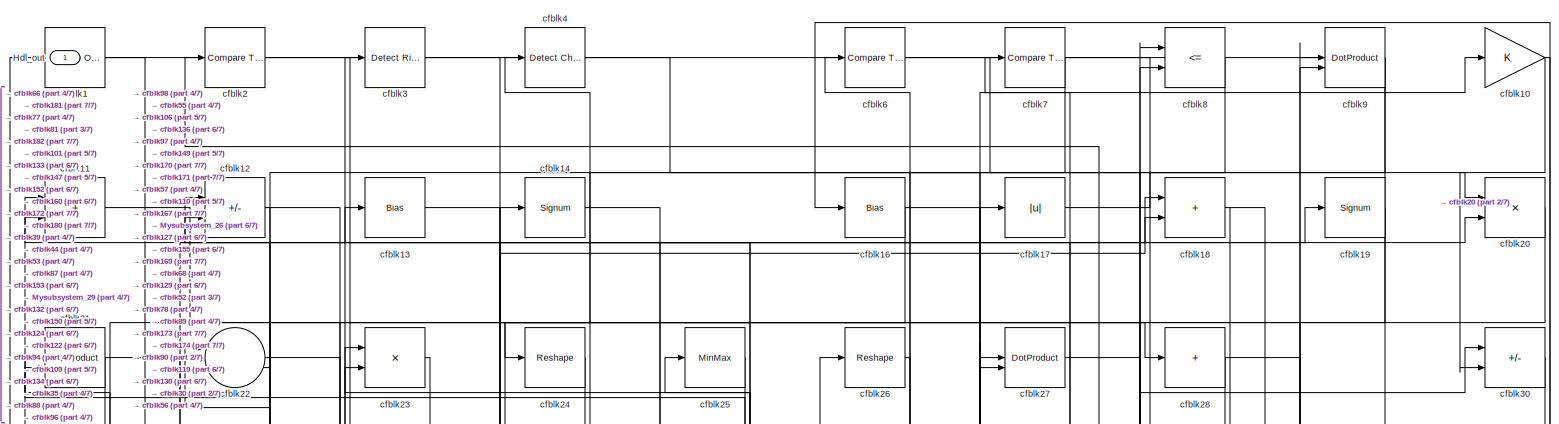
[diagram: root canvas - part 1/7, full width, top band]
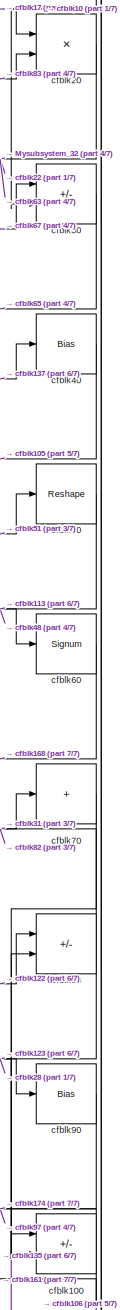
[diagram: root canvas - part 2/7, top right region]
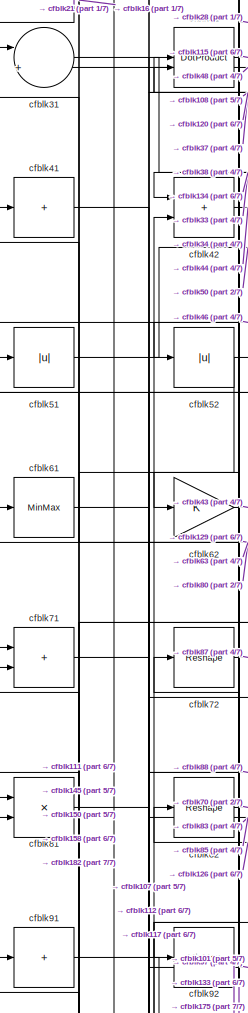
[diagram: root canvas - part 3/7, middle left region]
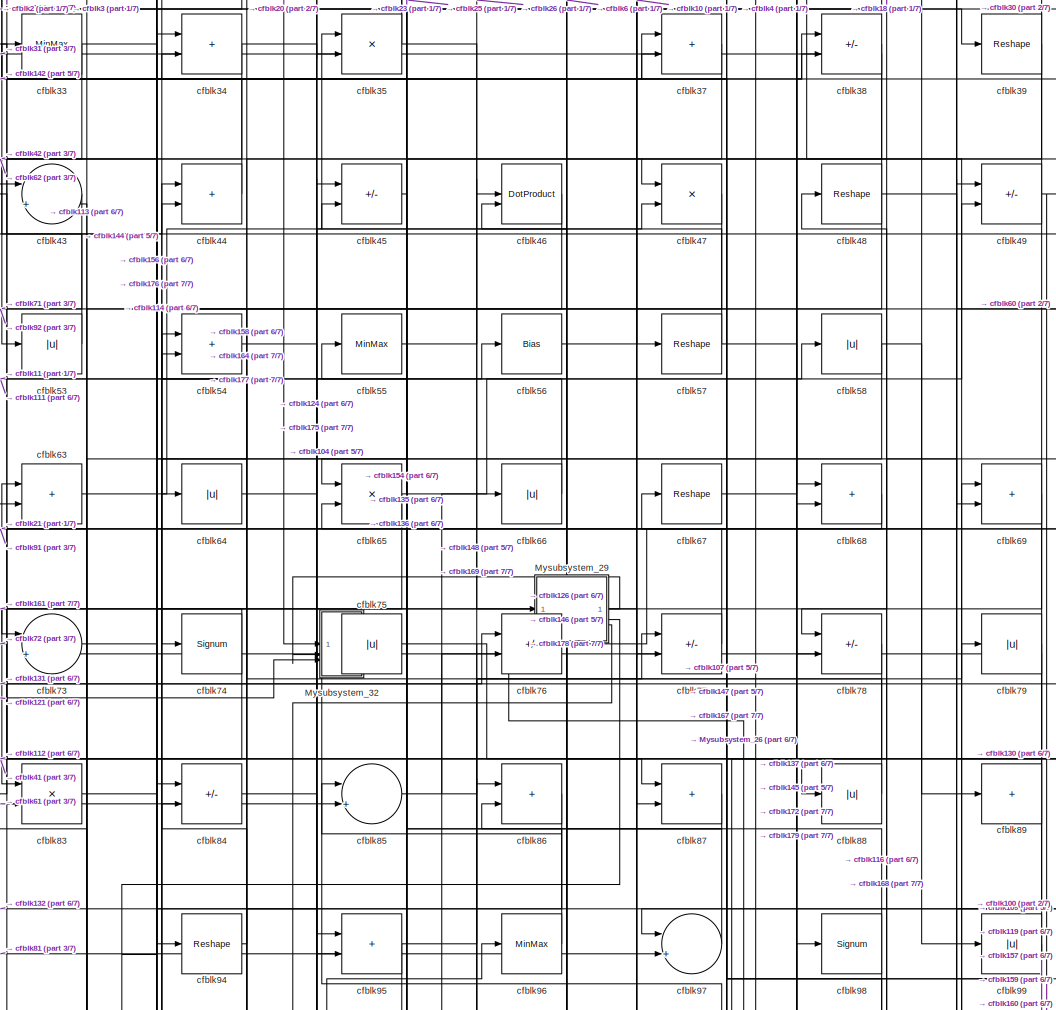
[diagram: root canvas - part 4/7, central region]
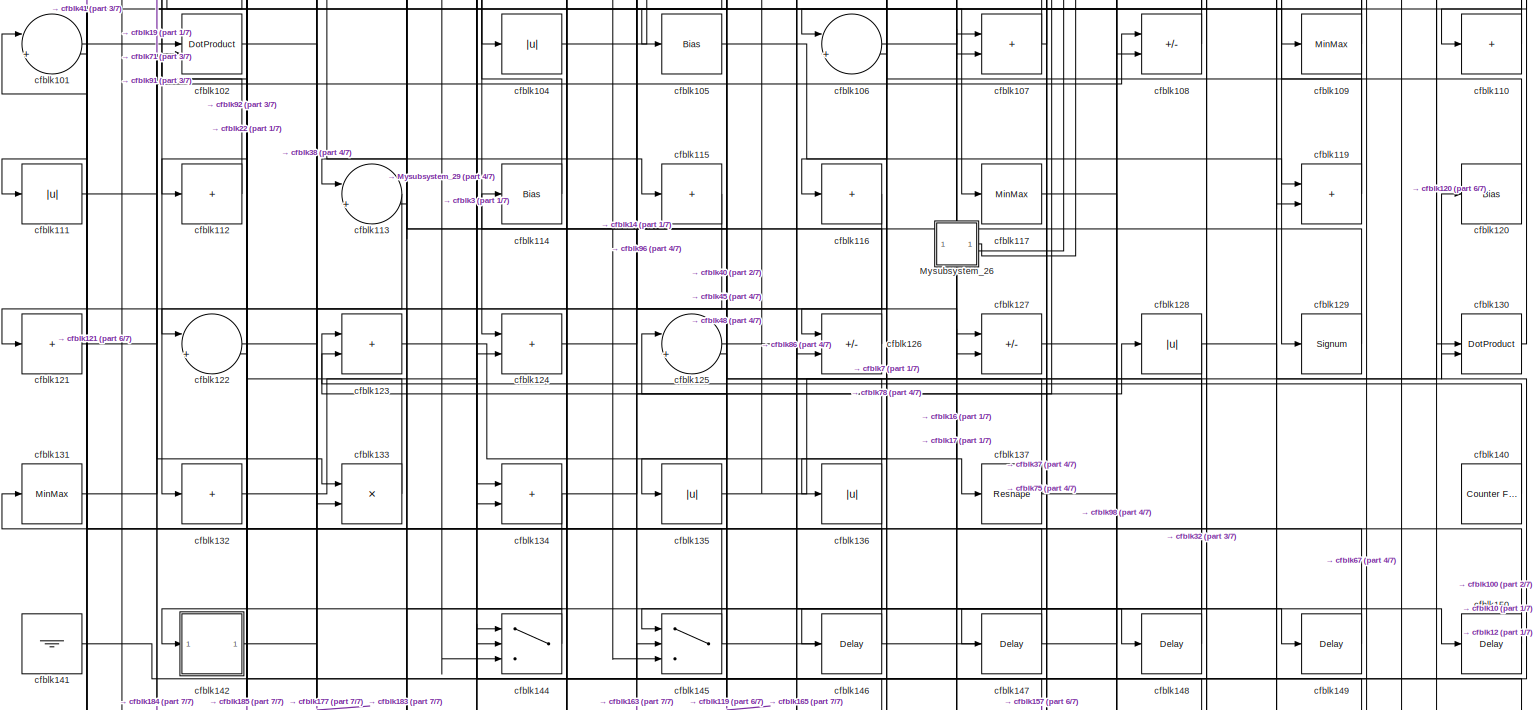
[diagram: root canvas - part 5/7, full width, middle band]
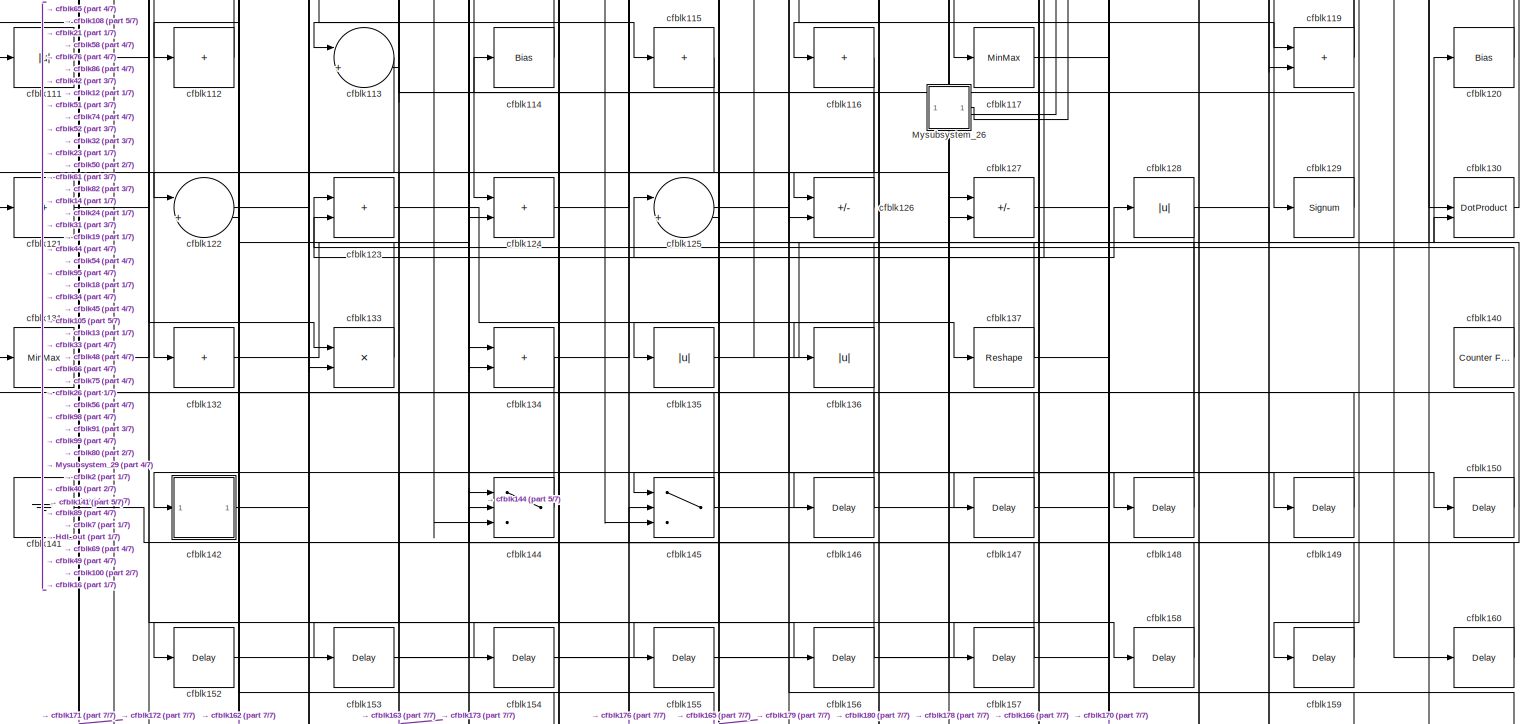
[diagram: root canvas - part 6/7, full width, bottom band]
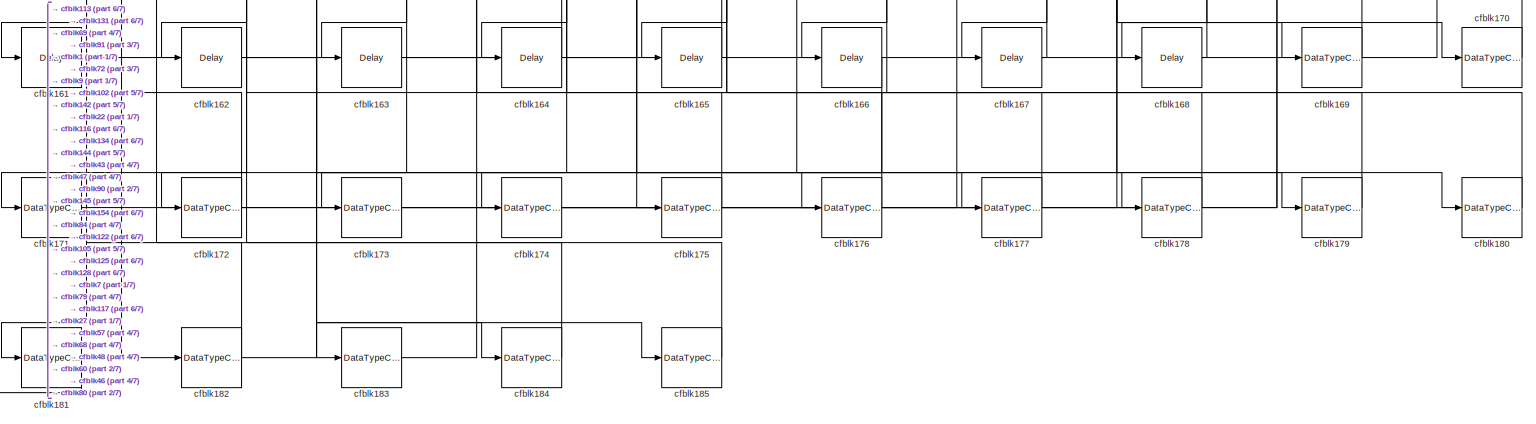
[diagram: root canvas - part 7/7, full width, bottom band]
MODEL slx_565dc2984d98
KIND model
CONFIG AbsTol = auto
CONFIG EnableMultiTasking = off
CONFIG FixedStep = auto
CONFIG MaxStep = auto
CONFIG MinStep = auto
CONFIG RelTol = 1e-3
CONFIG SampleTimeConstraint = Unconstrained
CONFIG SolverName = VariableStepAuto
CONFIG StartTime = 0.0
CONFIG StopTime = 10.0
BLOCK [Outport] Hdl_out
  OutDataTypeStr = uint8
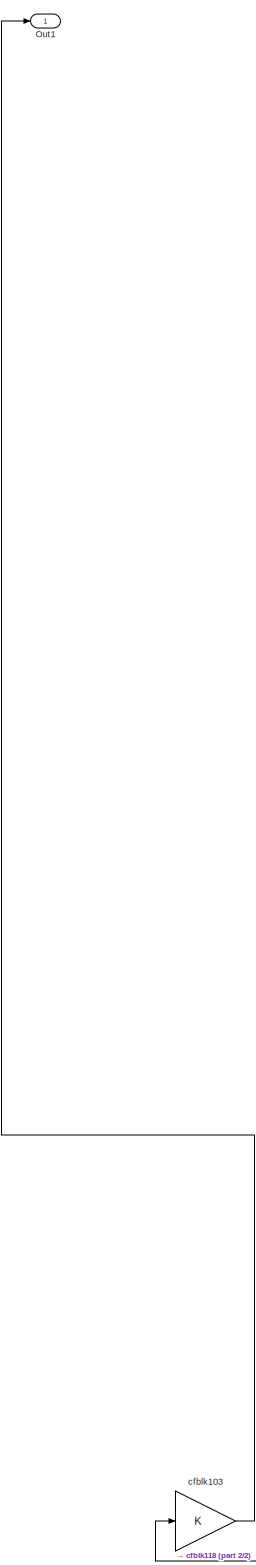
[diagram: Mysubsystem_26 - part 1/2, left side, full height]
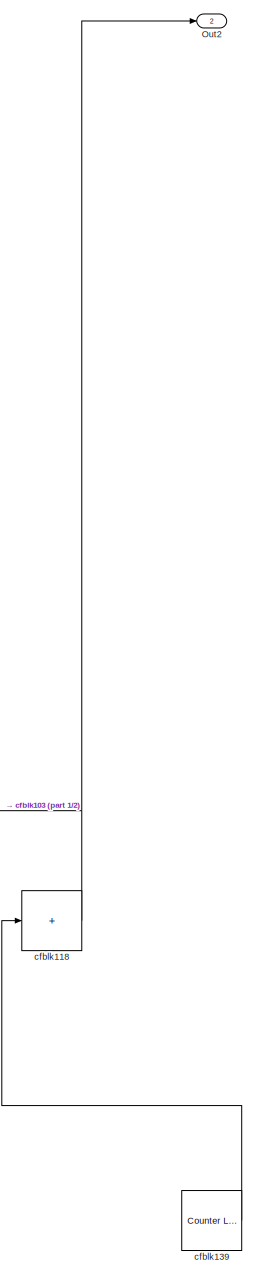
[diagram: Mysubsystem_26 - part 2/2, bottom right region]
BLOCK [SubSystem] Mysubsystem_26
  RTWFcnName = Mysubsystem_26
  RTWFcnNameOpts = User specified
  RTWFileNameOpts = Use function name
  RTWSystemCode = Reusable function
  TreatAsAtomicUnit = on
BLOCK [Outport] Mysubsystem_26/Out1
BLOCK [Outport] Mysubsystem_26/Out2
  Port = 2
BLOCK [Gain] Mysubsystem_26/cfblk103
BLOCK [Sum] Mysubsystem_26/cfblk118
  IconShape = rectangular
  Inputs = +
BLOCK [Reference] Mysubsystem_26/cfblk139  REF=hdlsllib/Sources/Counter
Limited
  SourceBlock = hdlsllib/Sources/Counter\nLimited
  SourceType = Counter Limited
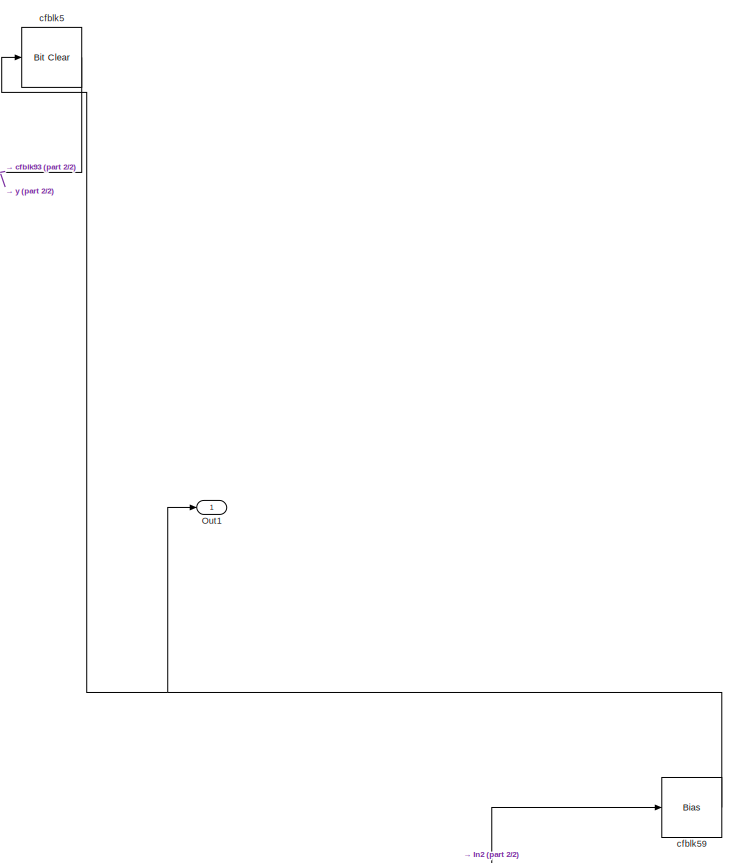
[diagram: Mysubsystem_29 - part 1/2, top center region]
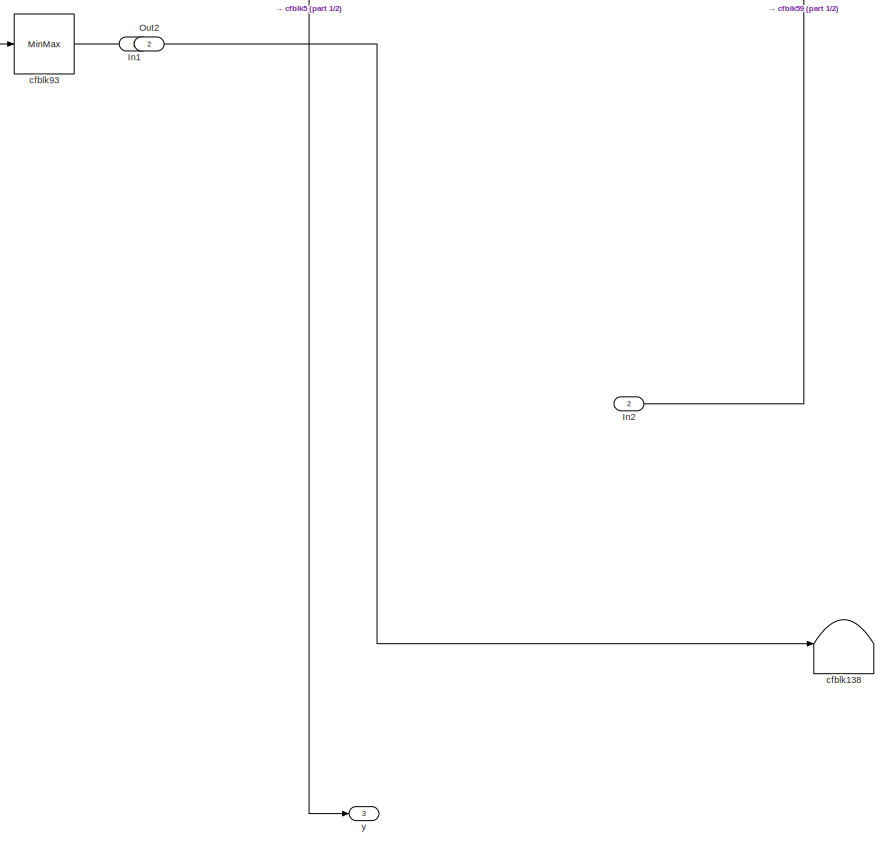
[diagram: Mysubsystem_29 - part 2/2, full width, bottom band]
BLOCK [SubSystem] Mysubsystem_29
  RTWFcnName = Mysubsystem_29
  RTWFcnNameOpts = User specified
  RTWFileNameOpts = Use function name
  RTWSystemCode = Reusable function
  TreatAsAtomicUnit = on
BLOCK [Inport] Mysubsystem_29/In1
BLOCK [Inport] Mysubsystem_29/In2
  Port = 2
BLOCK [Outport] Mysubsystem_29/Out1
BLOCK [Outport] Mysubsystem_29/Out2
  Port = 2
BLOCK [Terminator] Mysubsystem_29/cfblk138
BLOCK [Reference] Mysubsystem_29/cfblk5  REF=simulink/Logic and Bit
Operations/Bit Clear
  LibrarySourceBlock = hdlsllib/Logic and Bit\nOperations/Bit Clear
  SourceBlock = simulink/Logic and Bit\nOperations/Bit Clear
  SourceType = Bit Clear
BLOCK [Bias] Mysubsystem_29/cfblk59
  Bias = 0.0
  SaturateOnIntegerOverflow = off
BLOCK [MinMax] Mysubsystem_29/cfblk93
BLOCK [Outport] Mysubsystem_29/y
  Port = 3
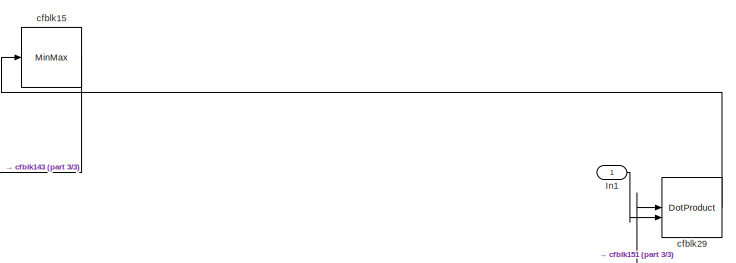
[diagram: Mysubsystem_32 - part 1/3, top right region]
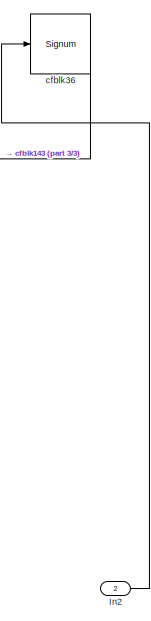
[diagram: Mysubsystem_32 - part 2/3, top center region]
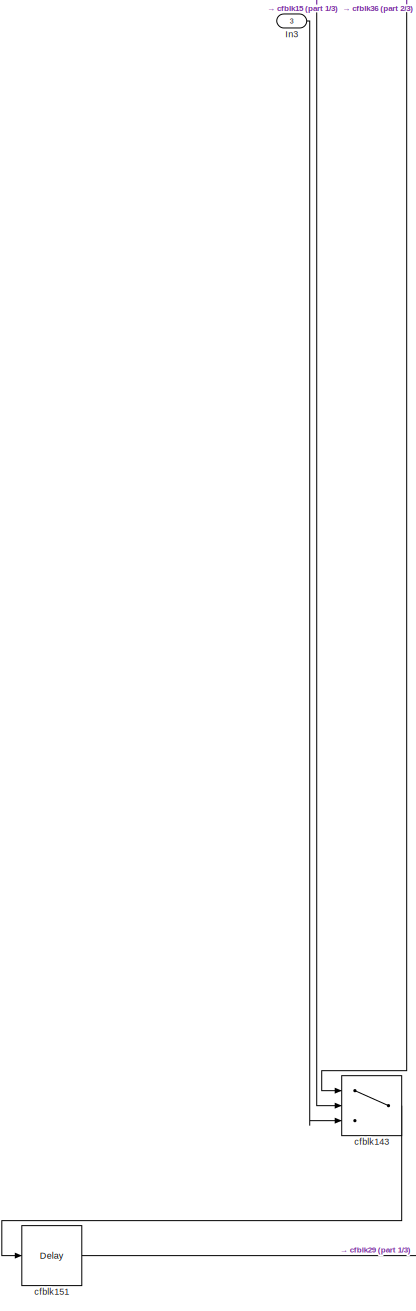
[diagram: Mysubsystem_32 - part 3/3, bottom left region]
BLOCK [SubSystem] Mysubsystem_32
  RTWFcnName = Mysubsystem_32
  RTWFcnNameOpts = User specified
  RTWFileNameOpts = Use function name
  RTWSystemCode = Reusable function
  TreatAsAtomicUnit = on
BLOCK [Inport] Mysubsystem_32/In1
BLOCK [Inport] Mysubsystem_32/In2
  Port = 2
BLOCK [Inport] Mysubsystem_32/In3
  Port = 3
BLOCK [Switch] Mysubsystem_32/cfblk143
  InputSameDT = off
  SaturateOnIntegerOverflow = off
BLOCK [MinMax] Mysubsystem_32/cfblk15
BLOCK [Delay] Mysubsystem_32/cfblk151
  InputPortMap = u0
  SampleTime = 1
BLOCK [DotProduct] Mysubsystem_32/cfblk29
  OutDataTypeStr = Inherit: Inherit via internal rule
BLOCK [Signum] Mysubsystem_32/cfblk36
BLOCK [Reference] cfblk1  REF=simulink/Logic and Bit
Operations/Bitwise
Operator
  LibrarySourceBlock = hdlsllib/Logic and Bit\nOperations/Bitwise\nOperator
  SourceBlock = simulink/Logic and Bit\nOperations/Bitwise\nOperator
  SourceType = Bitwise Operator
BLOCK [Gain] cfblk10
  OutDataTypeStr = uint8
BLOCK [Sum] cfblk100
  IconShape = rectangular
  Inputs = +-
  OutDataTypeStr = uint8
BLOCK [Sum] cfblk101
  Inputs = |++
  OutDataTypeStr = uint8
BLOCK [DotProduct] cfblk102
  OutDataTypeStr = uint8
BLOCK [Abs] cfblk104
  OutDataTypeStr = uint8
  SaturateOnIntegerOverflow = off
BLOCK [Bias] cfblk105
  Bias = 0.0
  SaturateOnIntegerOverflow = off
BLOCK [Sum] cfblk106
  Inputs = |++
  OutDataTypeStr = uint8
BLOCK [Sum] cfblk107
  IconShape = rectangular
  OutDataTypeStr = uint8
BLOCK [Sum] cfblk108
  IconShape = rectangular
  Inputs = +-
  OutDataTypeStr = uint8
BLOCK [MinMax] cfblk109
  OutDataTypeStr = uint8
BLOCK [Sum] cfblk11
  IconShape = rectangular
  OutDataTypeStr = uint8
BLOCK [Sum] cfblk110
  IconShape = rectangular
  Inputs = +
  OutDataTypeStr = uint8
BLOCK [Abs] cfblk111
  OutDataTypeStr = uint8
  SaturateOnIntegerOverflow = off
BLOCK [Sum] cfblk112
  IconShape = rectangular
  Inputs = +
  OutDataTypeStr = uint8
BLOCK [Sum] cfblk113
  Inputs = |++
  OutDataTypeStr = uint8
BLOCK [Bias] cfblk114
  Bias = 0.0
  SaturateOnIntegerOverflow = off
BLOCK [Sum] cfblk115
  IconShape = rectangular
  Inputs = +
  OutDataTypeStr = uint8
BLOCK [Sum] cfblk116
  IconShape = rectangular
  Inputs = +
  OutDataTypeStr = uint8
BLOCK [MinMax] cfblk117
  OutDataTypeStr = uint8
BLOCK [Sum] cfblk119
  IconShape = rectangular
  OutDataTypeStr = uint8
BLOCK [Sum] cfblk12
  IconShape = rectangular
  Inputs = +-
  OutDataTypeStr = uint8
BLOCK [Bias] cfblk120
  Bias = 0.0
  SaturateOnIntegerOverflow = off
BLOCK [Sum] cfblk121
  IconShape = rectangular
  Inputs = +
  OutDataTypeStr = uint8
BLOCK [Sum] cfblk122
  Inputs = |++
  OutDataTypeStr = uint8
BLOCK [Sum] cfblk123
  IconShape = rectangular
  OutDataTypeStr = uint8
BLOCK [Sum] cfblk124
  IconShape = rectangular
  OutDataTypeStr = uint8
BLOCK [Sum] cfblk125
  Inputs = |++
  OutDataTypeStr = uint8
BLOCK [Sum] cfblk126
  IconShape = rectangular
  Inputs = +-
  OutDataTypeStr = uint8
BLOCK [Sum] cfblk127
  IconShape = rectangular
  Inputs = +-
  OutDataTypeStr = uint8
BLOCK [Abs] cfblk128
  OutDataTypeStr = uint8
  SaturateOnIntegerOverflow = off
BLOCK [Signum] cfblk129
BLOCK [Bias] cfblk13
  Bias = 0.0
  SaturateOnIntegerOverflow = off
BLOCK [DotProduct] cfblk130
  OutDataTypeStr = uint8
BLOCK [MinMax] cfblk131
  OutDataTypeStr = uint8
BLOCK [Sum] cfblk132
  IconShape = rectangular
  Inputs = +
  OutDataTypeStr = uint8
BLOCK [Product] cfblk133
  Inputs = */
  OutDataTypeStr = uint8
  RndMeth = Zero
  SaturateOnIntegerOverflow = on
BLOCK [Sum] cfblk134
  IconShape = rectangular
  OutDataTypeStr = uint8
BLOCK [Abs] cfblk135
  OutDataTypeStr = uint8
  SaturateOnIntegerOverflow = off
BLOCK [Abs] cfblk136
  OutDataTypeStr = uint8
  SaturateOnIntegerOverflow = off
BLOCK [Reshape] cfblk137
BLOCK [Signum] cfblk14
BLOCK [Reference] cfblk140  REF=hdlsllib/Sources/Counter
Free-Running
  SourceBlock = hdlsllib/Sources/Counter\nFree-Running
  SourceType = Counter Free-Running
BLOCK [Ground] cfblk141
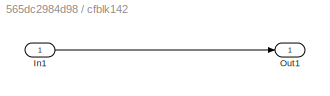
BLOCK [SubSystem] cfblk142
  LibrarySourceBlock = hdlsllib/Ports &\nSubsystems/Subsystem
BLOCK [Inport] cfblk142/In1
BLOCK [Outport] cfblk142/Out1
BLOCK [Switch] cfblk144
  InputSameDT = off
  OutDataTypeStr = uint8
  SaturateOnIntegerOverflow = off
BLOCK [Switch] cfblk145
  InputSameDT = off
  OutDataTypeStr = uint8
  SaturateOnIntegerOverflow = off
BLOCK [Delay] cfblk146
  InputPortMap = u0
  SampleTime = 1
BLOCK [Delay] cfblk147
  InputPortMap = u0
  SampleTime = 1
BLOCK [Delay] cfblk148
  InputPortMap = u0
  SampleTime = 1
BLOCK [Delay] cfblk149
  InputPortMap = u0
  SampleTime = 1
BLOCK [Delay] cfblk150
  InputPortMap = u0
  SampleTime = 1
BLOCK [Delay] cfblk152
  InputPortMap = u0
  SampleTime = 1
BLOCK [Delay] cfblk153
  InputPortMap = u0
  SampleTime = 1
BLOCK [Delay] cfblk154
  InputPortMap = u0
  SampleTime = 1
BLOCK [Delay] cfblk155
  InputPortMap = u0
  SampleTime = 1
BLOCK [Delay] cfblk156
  InputPortMap = u0
  SampleTime = 1
BLOCK [Delay] cfblk157
  InputPortMap = u0
  SampleTime = 1
BLOCK [Delay] cfblk158
  InputPortMap = u0
  SampleTime = 1
BLOCK [Delay] cfblk159
  InputPortMap = u0
  SampleTime = 1
BLOCK [Bias] cfblk16
  Bias = 0.0
  SaturateOnIntegerOverflow = off
BLOCK [Delay] cfblk160
  InputPortMap = u0
  SampleTime = 1
BLOCK [Delay] cfblk161
  InputPortMap = u0
  SampleTime = 1
BLOCK [Delay] cfblk162
  InputPortMap = u0
  SampleTime = 1
BLOCK [Delay] cfblk163
  InputPortMap = u0
  SampleTime = 1
BLOCK [Delay] cfblk164
  InputPortMap = u0
  SampleTime = 1
BLOCK [Delay] cfblk165
  InputPortMap = u0
  SampleTime = 1
BLOCK [Delay] cfblk166
  InputPortMap = u0
  SampleTime = 1
BLOCK [Delay] cfblk167
  InputPortMap = u0
  SampleTime = 1
BLOCK [Delay] cfblk168
  InputPortMap = u0
  SampleTime = 1
BLOCK [DataTypeConversion] cfblk169
  OutDataTypeStr = uint8
  RndMeth = Floor
  SaturateOnIntegerOverflow = off
BLOCK [Abs] cfblk17
  OutDataTypeStr = uint8
  SaturateOnIntegerOverflow = off
BLOCK [DataTypeConversion] cfblk170
  OutDataTypeStr = uint8
  RndMeth = Floor
  SaturateOnIntegerOverflow = off
BLOCK [DataTypeConversion] cfblk171
  OutDataTypeStr = uint8
  RndMeth = Floor
  SaturateOnIntegerOverflow = off
BLOCK [DataTypeConversion] cfblk172
  OutDataTypeStr = uint8
  RndMeth = Floor
  SaturateOnIntegerOverflow = off
BLOCK [DataTypeConversion] cfblk173
  OutDataTypeStr = uint8
  RndMeth = Floor
  SaturateOnIntegerOverflow = off
BLOCK [DataTypeConversion] cfblk174
  OutDataTypeStr = uint8
  RndMeth = Floor
  SaturateOnIntegerOverflow = off
BLOCK [DataTypeConversion] cfblk175
  OutDataTypeStr = uint8
  RndMeth = Floor
  SaturateOnIntegerOverflow = off
BLOCK [DataTypeConversion] cfblk176
  OutDataTypeStr = uint8
  RndMeth = Floor
  SaturateOnIntegerOverflow = off
BLOCK [DataTypeConversion] cfblk177
  OutDataTypeStr = uint8
  RndMeth = Floor
  SaturateOnIntegerOverflow = off
BLOCK [DataTypeConversion] cfblk178
  OutDataTypeStr = uint8
  RndMeth = Floor
  SaturateOnIntegerOverflow = off
BLOCK [DataTypeConversion] cfblk179
  OutDataTypeStr = uint8
  RndMeth = Floor
  SaturateOnIntegerOverflow = off
BLOCK [Sum] cfblk18
  IconShape = rectangular
  OutDataTypeStr = uint8
BLOCK [DataTypeConversion] cfblk180
  OutDataTypeStr = uint8
  RndMeth = Floor
  SaturateOnIntegerOverflow = off
BLOCK [DataTypeConversion] cfblk181
  OutDataTypeStr = uint8
  RndMeth = Floor
  SaturateOnIntegerOverflow = off
BLOCK [DataTypeConversion] cfblk182
  OutDataTypeStr = uint8
  RndMeth = Floor
  SaturateOnIntegerOverflow = off
BLOCK [DataTypeConversion] cfblk183
  OutDataTypeStr = uint8
  RndMeth = Floor
  SaturateOnIntegerOverflow = off
BLOCK [DataTypeConversion] cfblk184
  OutDataTypeStr = uint8
  RndMeth = Floor
  SaturateOnIntegerOverflow = off
BLOCK [DataTypeConversion] cfblk185
  OutDataTypeStr = uint8
  RndMeth = Floor
  SaturateOnIntegerOverflow = off
BLOCK [Signum] cfblk19
BLOCK [Reference] cfblk2  REF=hdlsllib/Logic and Bit
Operations/Compare
To Constant
  SourceBlock = hdlsllib/Logic and Bit\nOperations/Compare\nTo Constant
  SourceType = Compare To Constant
BLOCK [Product] cfblk20
  Inputs = */
  OutDataTypeStr = uint8
  RndMeth = Zero
  SaturateOnIntegerOverflow = on
BLOCK [DotProduct] cfblk21
  OutDataTypeStr = uint8
BLOCK [Sum] cfblk22
  Inputs = |++
  OutDataTypeStr = uint8
BLOCK [Product] cfblk23
  Inputs = */
  OutDataTypeStr = uint8
  RndMeth = Zero
  SaturateOnIntegerOverflow = on
BLOCK [Reshape] cfblk24
BLOCK [MinMax] cfblk25
  OutDataTypeStr = uint8
BLOCK [Reshape] cfblk26
BLOCK [DotProduct] cfblk27
  OutDataTypeStr = uint8
BLOCK [Sum] cfblk28
  IconShape = rectangular
  Inputs = +
  OutDataTypeStr = uint8
BLOCK [Reference] cfblk3  REF=hdlsllib/Logic and Bit
Operations/Detect Rise
Nonnegative
  SourceBlock = hdlsllib/Logic and Bit\nOperations/Detect Rise\nNonnegative
  SourceType = Detect Rise Nonnegative
BLOCK [Sum] cfblk30
  IconShape = rectangular
  Inputs = +-
  OutDataTypeStr = uint8
BLOCK [Sum] cfblk31
  Inputs = |++
  OutDataTypeStr = uint8
BLOCK [DotProduct] cfblk32
  OutDataTypeStr = uint8
BLOCK [MinMax] cfblk33
  OutDataTypeStr = uint8
BLOCK [Sum] cfblk34
  IconShape = rectangular
  OutDataTypeStr = uint8
BLOCK [Product] cfblk35
  Inputs = */
  OutDataTypeStr = uint8
  RndMeth = Zero
  SaturateOnIntegerOverflow = on
BLOCK [Sum] cfblk37
  IconShape = rectangular
  OutDataTypeStr = uint8
BLOCK [Sum] cfblk38
  IconShape = rectangular
  Inputs = +-
  OutDataTypeStr = uint8
BLOCK [Reshape] cfblk39
BLOCK [Reference] cfblk4  REF=simulink/Logic and Bit
Operations/Detect
Change
  LibrarySourceBlock = hdlsllib/Logic and Bit\nOperations/Detect\nChange
  SourceBlock = simulink/Logic and Bit\nOperations/Detect\nChange
  SourceType = Detect Change
BLOCK [Bias] cfblk40
  Bias = 0.0
  SaturateOnIntegerOverflow = off
BLOCK [Sum] cfblk41
  IconShape = rectangular
  Inputs = +
  OutDataTypeStr = uint8
BLOCK [Sum] cfblk42
  IconShape = rectangular
  OutDataTypeStr = uint8
BLOCK [Sum] cfblk43
  Inputs = |++
  OutDataTypeStr = uint8
BLOCK [Sum] cfblk44
  IconShape = rectangular
  OutDataTypeStr = uint8
BLOCK [Sum] cfblk45
  IconShape = rectangular
  Inputs = +-
  OutDataTypeStr = uint8
BLOCK [DotProduct] cfblk46
  OutDataTypeStr = uint8
BLOCK [Product] cfblk47
  Inputs = */
  OutDataTypeStr = uint8
  RndMeth = Zero
  SaturateOnIntegerOverflow = on
BLOCK [Reshape] cfblk48
BLOCK [Sum] cfblk49
  IconShape = rectangular
  Inputs = +-
  OutDataTypeStr = uint8
BLOCK [Reshape] cfblk50
BLOCK [Abs] cfblk51
  OutDataTypeStr = uint8
  SaturateOnIntegerOverflow = off
BLOCK [Abs] cfblk52
  OutDataTypeStr = uint8
  SaturateOnIntegerOverflow = off
BLOCK [Abs] cfblk53
  OutDataTypeStr = uint8
  SaturateOnIntegerOverflow = off
BLOCK [Sum] cfblk54
  IconShape = rectangular
  OutDataTypeStr = uint8
BLOCK [MinMax] cfblk55
  OutDataTypeStr = uint8
BLOCK [Bias] cfblk56
  Bias = 0.0
  SaturateOnIntegerOverflow = off
BLOCK [Reshape] cfblk57
BLOCK [Abs] cfblk58
  OutDataTypeStr = uint8
  SaturateOnIntegerOverflow = off
BLOCK [Reference] cfblk6  REF=hdlsllib/Logic and Bit
Operations/Compare
To Zero
  SourceBlock = hdlsllib/Logic and Bit\nOperations/Compare\nTo Zero
  SourceType = Compare To Zero
BLOCK [Signum] cfblk60
BLOCK [MinMax] cfblk61
  OutDataTypeStr = uint8
BLOCK [Gain] cfblk62
  OutDataTypeStr = uint8
BLOCK [Sum] cfblk63
  IconShape = rectangular
  OutDataTypeStr = uint8
BLOCK [Abs] cfblk64
  OutDataTypeStr = uint8
  SaturateOnIntegerOverflow = off
BLOCK [Product] cfblk65
  Inputs = */
  OutDataTypeStr = uint8
  RndMeth = Zero
  SaturateOnIntegerOverflow = on
BLOCK [Abs] cfblk66
  OutDataTypeStr = uint8
  SaturateOnIntegerOverflow = off
BLOCK [Reshape] cfblk67
BLOCK [Sum] cfblk68
  IconShape = rectangular
  OutDataTypeStr = uint8
BLOCK [Sum] cfblk69
  IconShape = rectangular
  OutDataTypeStr = uint8
BLOCK [Reference] cfblk7  REF=hdlsllib/Logic and Bit
Operations/Compare
To Constant
  SourceBlock = hdlsllib/Logic and Bit\nOperations/Compare\nTo Constant
  SourceType = Compare To Constant
BLOCK [Sum] cfblk70
  IconShape = rectangular
  Inputs = +
  OutDataTypeStr = uint8
BLOCK [Sum] cfblk71
  IconShape = rectangular
  OutDataTypeStr = uint8
BLOCK [Reshape] cfblk72
BLOCK [Sum] cfblk73
  Inputs = |++
  OutDataTypeStr = uint8
BLOCK [Signum] cfblk74
BLOCK [Abs] cfblk75
  OutDataTypeStr = uint8
  SaturateOnIntegerOverflow = off
BLOCK [Sum] cfblk76
  IconShape = rectangular
  Inputs = +-
  OutDataTypeStr = uint8
BLOCK [Sum] cfblk77
  IconShape = rectangular
  Inputs = +-
  OutDataTypeStr = uint8
BLOCK [Sum] cfblk78
  IconShape = rectangular
  Inputs = +-
  OutDataTypeStr = uint8
BLOCK [Abs] cfblk79
  OutDataTypeStr = uint8
  SaturateOnIntegerOverflow = off
BLOCK [RelationalOperator] cfblk8
  InputSameDT = off
  Operator = <=
  OutDataTypeStr = boolean
BLOCK [Sum] cfblk80
  IconShape = rectangular
  Inputs = +-
  OutDataTypeStr = uint8
BLOCK [Product] cfblk81
  Inputs = */
  OutDataTypeStr = uint8
  RndMeth = Zero
  SaturateOnIntegerOverflow = on
BLOCK [Reshape] cfblk82
BLOCK [Product] cfblk83
  Inputs = */
  OutDataTypeStr = uint8
  RndMeth = Zero
  SaturateOnIntegerOverflow = on
BLOCK [Sum] cfblk84
  IconShape = rectangular
  Inputs = +-
  OutDataTypeStr = uint8
BLOCK [Sum] cfblk85
  Inputs = |++
  OutDataTypeStr = uint8
BLOCK [Sum] cfblk86
  IconShape = rectangular
  OutDataTypeStr = uint8
BLOCK [Sum] cfblk87
  IconShape = rectangular
  OutDataTypeStr = uint8
BLOCK [Abs] cfblk88
  OutDataTypeStr = uint8
  SaturateOnIntegerOverflow = off
BLOCK [Sum] cfblk89
  IconShape = rectangular
  Inputs = +
  OutDataTypeStr = uint8
BLOCK [DotProduct] cfblk9
  OutDataTypeStr = uint8
BLOCK [Bias] cfblk90
  Bias = 0.0
  SaturateOnIntegerOverflow = off
BLOCK [Sum] cfblk91
  IconShape = rectangular
  Inputs = +
  OutDataTypeStr = uint8
BLOCK [MinMax] cfblk92
  OutDataTypeStr = uint8
BLOCK [Reshape] cfblk94
BLOCK [Sum] cfblk95
  IconShape = rectangular
  OutDataTypeStr = uint8
BLOCK [MinMax] cfblk96
  OutDataTypeStr = uint8
BLOCK [Sum] cfblk97
  Inputs = |++
  OutDataTypeStr = uint8
BLOCK [Signum] cfblk98
BLOCK [Abs] cfblk99
  OutDataTypeStr = uint8
  SaturateOnIntegerOverflow = off
LINE Mysubsystem_26/cfblk103:1 -> Mysubsystem_26/Out1:1
NET Mysubsystem_26/cfblk118:1 -> Mysubsystem_26/Out2:1, Mysubsystem_26/cfblk103:1
LINE Mysubsystem_26/cfblk139:1 -> Mysubsystem_26/cfblk118:1
LINE Mysubsystem_26:1 -> cfblk2:1
LINE Mysubsystem_26:2 -> Mysubsystem_29:2
LINE Mysubsystem_29/In1:1 -> Mysubsystem_29/cfblk138:1
LINE Mysubsystem_29/In2:1 -> Mysubsystem_29/cfblk59:1
NET Mysubsystem_29/cfblk59:1 -> Mysubsystem_29/Out1:1, Mysubsystem_29/cfblk5:1
NET Mysubsystem_29/cfblk5:1 -> Mysubsystem_29/cfblk93:1, Mysubsystem_29/y:1
LINE Mysubsystem_29/cfblk93:1 -> Mysubsystem_29/Out2:1
LINE Mysubsystem_29:1 -> Mysubsystem_32:2
NET Mysubsystem_29:2 -> Mysubsystem_29:1, cfblk144:3, cfblk18:1
LINE Mysubsystem_29:3 -> cfblk145:3
LINE Mysubsystem_32/In1:1 -> Mysubsystem_32/cfblk29:2
LINE Mysubsystem_32/In2:1 -> Mysubsystem_32/cfblk36:1
LINE Mysubsystem_32/In3:1 -> Mysubsystem_32/cfblk143:3
LINE Mysubsystem_32/cfblk143:1 -> Mysubsystem_32/cfblk151:1
LINE Mysubsystem_32/cfblk151:1 -> Mysubsystem_32/cfblk29:1
LINE Mysubsystem_32/cfblk15:1 -> Mysubsystem_32/cfblk143:2
LINE Mysubsystem_32/cfblk29:1 -> Mysubsystem_32/cfblk15:1
LINE Mysubsystem_32/cfblk36:1 -> Mysubsystem_32/cfblk143:1
NET cfblk100:1 -> cfblk106:1, cfblk97:1
LINE cfblk101:1 -> cfblk19:1
LINE cfblk102:1 -> cfblk183:1
LINE cfblk104:1 -> cfblk96:1
NET cfblk105:1 -> cfblk119:1, cfblk165:1
LINE cfblk106:1 -> cfblk17:1
NET cfblk107:1 -> cfblk37:1, cfblk75:1
LINE cfblk108:1 -> cfblk32:1
LINE cfblk109:1 -> cfblk67:1
NET cfblk10:1 -> cfblk110:1, cfblk30:2
LINE cfblk110:1 -> cfblk12:1
NET cfblk111:1 -> cfblk156:1, cfblk58:1
LINE cfblk112:1 -> cfblk42:2
LINE cfblk113:1 -> cfblk171:1
LINE cfblk114:1 -> cfblk44:1
LINE cfblk115:1 -> cfblk133:2
NET cfblk116:1 -> cfblk162:1, cfblk163:1
LINE cfblk117:1 -> cfblk170:1
NET cfblk119:1 -> Hdl_out:1, cfblk69:1
LINE cfblk11:1 -> cfblk68:1
LINE cfblk120:1 -> cfblk32:2
LINE cfblk121:1 -> cfblk108:1
LINE cfblk122:1 -> cfblk80:1
LINE cfblk123:1 -> cfblk137:1
LINE cfblk124:1 -> cfblk56:1
LINE cfblk125:1 -> cfblk178:1
LINE cfblk126:1 -> cfblk82:1
LINE cfblk127:1 -> cfblk8:1
NET cfblk128:1 -> cfblk130:2, cfblk166:1
LINE cfblk129:1 -> cfblk61:1
NET cfblk12:1 -> cfblk152:1, cfblk39:1
LINE cfblk130:1 -> cfblk16:1
LINE cfblk131:1 -> cfblk76:1
LINE cfblk132:1 -> cfblk14:1
LINE cfblk133:1 -> cfblk51:1
NET cfblk134:1 -> cfblk128:1, cfblk173:1, cfblk18:2
NET cfblk135:1 -> cfblk100:1, cfblk66:1
NET cfblk136:1 -> cfblk13:1, cfblk155:1, cfblk33:1
NET cfblk137:1 -> cfblk114:1, cfblk34:2, cfblk40:1
LINE cfblk13:1 -> cfblk28:1
LINE cfblk140:1 -> cfblk123:2
LINE cfblk141:1 -> cfblk120:1
LINE cfblk142/In1:1 -> cfblk142/Out1:1
NET cfblk142:1 -> cfblk177:1, cfblk38:2
LINE cfblk144:1 -> cfblk142:1
NET cfblk145:1 -> cfblk41:1, cfblk98:1
LINE cfblk146:1 -> cfblk101:1
LINE cfblk147:1 -> cfblk22:1
LINE cfblk148:1 -> cfblk86:1
LINE cfblk149:1 -> cfblk107:1
NET cfblk14:1 -> cfblk109:1, cfblk127:2
LINE cfblk150:1 -> cfblk71:2
LINE cfblk152:1 -> cfblk127:1
LINE cfblk153:1 -> cfblk124:2
LINE cfblk154:1 -> cfblk176:1
LINE cfblk155:1 -> cfblk8:2
LINE cfblk156:1 -> cfblk34:1
LINE cfblk157:1 -> cfblk144:2
LINE cfblk158:1 -> cfblk54:2
LINE cfblk159:1 -> cfblk45:1
LINE cfblk160:1 -> cfblk12:2
LINE cfblk161:1 -> cfblk80:2
LINE cfblk162:1 -> cfblk185:1
LINE cfblk163:1 -> cfblk145:2
LINE cfblk164:1 -> cfblk43:2
LINE cfblk165:1 -> cfblk122:2
LINE cfblk166:1 -> cfblk181:1
LINE cfblk167:1 -> cfblk7:1
LINE cfblk168:1 -> cfblk48:1
LINE cfblk169:1 -> cfblk46:1
NET cfblk16:1 -> cfblk149:1, cfblk81:1
LINE cfblk170:1 -> cfblk27:1
LINE cfblk171:1 -> cfblk27:2
NET cfblk172:1 -> cfblk131:1, cfblk68:2
LINE cfblk173:1 -> cfblk9:1
LINE cfblk174:1 -> cfblk9:2
LINE cfblk175:1 -> cfblk72:1
LINE cfblk176:1 -> cfblk84:1
LINE cfblk177:1 -> cfblk84:2
LINE cfblk178:1 -> cfblk46:2
LINE cfblk179:1 -> cfblk125:1
LINE cfblk17:1 -> cfblk20:1
LINE cfblk180:1 -> cfblk125:2
LINE cfblk181:1 -> cfblk1:1
NET cfblk182:1 -> cfblk184:1, cfblk91:1
LINE cfblk183:1 -> cfblk144:1
LINE cfblk184:1 -> cfblk102:1
LINE cfblk185:1 -> cfblk102:2
NET cfblk18:1 -> cfblk78:1, cfblk89:1
LINE cfblk19:1 -> cfblk124:1
LINE cfblk1:1 -> cfblk182:1
NET cfblk20:1 -> Mysubsystem_32:1, cfblk22:2, cfblk63:2
NET cfblk21:1 -> cfblk133:1, cfblk81:2
LINE cfblk22:1 -> cfblk180:1
LINE cfblk23:1 -> cfblk153:1
NET cfblk24:1 -> cfblk122:1, cfblk134:2
LINE cfblk25:1 -> cfblk35:2
LINE cfblk26:1 -> cfblk136:1
LINE cfblk27:1 -> cfblk169:1
NET cfblk28:1 -> cfblk52:1, cfblk90:1
LINE cfblk2:1 -> cfblk87:1
LINE cfblk30:1 -> cfblk65:1
NET cfblk31:1 -> cfblk134:1, cfblk37:2
LINE cfblk32:1 -> cfblk115:1
NET cfblk33:1 -> cfblk42:1, cfblk69:2
NET cfblk34:1 -> cfblk126:2, cfblk62:1
NET cfblk35:1 -> cfblk21:2, cfblk77:2
LINE cfblk37:1 -> cfblk53:1
LINE cfblk38:1 -> cfblk147:1
NET cfblk39:1 -> cfblk47:1, cfblk64:1
LINE cfblk3:1 -> cfblk150:1
LINE cfblk40:1 -> cfblk105:1
LINE cfblk41:1 -> cfblk88:1
LINE cfblk42:1 -> cfblk44:2
LINE cfblk43:1 -> cfblk92:1
LINE cfblk44:1 -> cfblk23:2
LINE cfblk45:1 -> cfblk145:1
LINE cfblk46:1 -> cfblk71:1
NET cfblk47:1 -> cfblk164:1, cfblk74:1
NET cfblk48:1 -> cfblk104:1, cfblk135:1, cfblk31:2, cfblk60:1
NET cfblk49:1 -> cfblk159:1, cfblk160:1
LINE cfblk4:1 -> cfblk57:1
LINE cfblk50:1 -> cfblk113:2
LINE cfblk51:1 -> cfblk50:1
NET cfblk52:1 -> cfblk111:1, cfblk158:1
LINE cfblk53:1 -> cfblk3:1
LINE cfblk54:1 -> cfblk95:1
LINE cfblk55:1 -> cfblk26:1
NET cfblk56:1 -> cfblk10:1, cfblk126:1
NET cfblk57:1 -> cfblk179:1, cfblk45:2
NET cfblk58:1 -> cfblk113:1, cfblk99:1
LINE cfblk60:1 -> cfblk168:1
NET cfblk61:1 -> cfblk83:2, cfblk85:2
LINE cfblk62:1 -> cfblk43:1
LINE cfblk63:1 -> cfblk35:1
LINE cfblk64:1 -> cfblk47:2
NET cfblk65:1 -> Mysubsystem_32:3, cfblk121:1, cfblk49:2
LINE cfblk66:1 -> cfblk11:1
LINE cfblk67:1 -> cfblk30:1
LINE cfblk68:1 -> cfblk65:2
NET cfblk69:1 -> cfblk161:1, cfblk83:1
LINE cfblk6:1 -> cfblk78:2
LINE cfblk70:1 -> cfblk100:2
NET cfblk71:1 -> cfblk107:2, cfblk38:1
LINE cfblk72:1 -> cfblk87:2
NET cfblk73:1 -> cfblk94:1, cfblk95:2
NET cfblk74:1 -> cfblk112:1, cfblk73:1
NET cfblk75:1 -> cfblk130:1, cfblk148:1
LINE cfblk76:1 -> cfblk49:1
LINE cfblk77:1 -> cfblk21:1
LINE cfblk78:1 -> cfblk146:1
LINE cfblk79:1 -> cfblk167:1
NET cfblk7:1 -> cfblk106:2, cfblk129:1
NET cfblk80:1 -> cfblk123:1, cfblk31:1
LINE cfblk81:1 -> cfblk97:2
LINE cfblk82:1 -> cfblk70:1
LINE cfblk83:1 -> cfblk20:2
LINE cfblk84:1 -> cfblk175:1
NET cfblk85:1 -> cfblk76:2, cfblk79:1
LINE cfblk86:1 -> cfblk132:1
LINE cfblk87:1 -> cfblk86:2
NET cfblk88:1 -> cfblk25:1, cfblk54:1
NET cfblk89:1 -> cfblk119:2, cfblk73:2
LINE cfblk8:1 -> cfblk24:1
LINE cfblk90:1 -> cfblk174:1
NET cfblk91:1 -> cfblk108:2, cfblk117:1, cfblk63:1
LINE cfblk92:1 -> cfblk101:2
LINE cfblk94:1 -> cfblk4:1
NET cfblk95:1 -> cfblk154:1, cfblk55:1, cfblk77:1
NET cfblk96:1 -> cfblk11:2, cfblk85:1
LINE cfblk97:1 -> cfblk6:1
NET cfblk98:1 -> cfblk116:1, cfblk23:1
LINE cfblk99:1 -> cfblk157:1
LINE cfblk9:1 -> cfblk172:1
note: NET lines group one-source signal fan-out (src -> all destinations, sorted); 1:1 wires keep LINE
